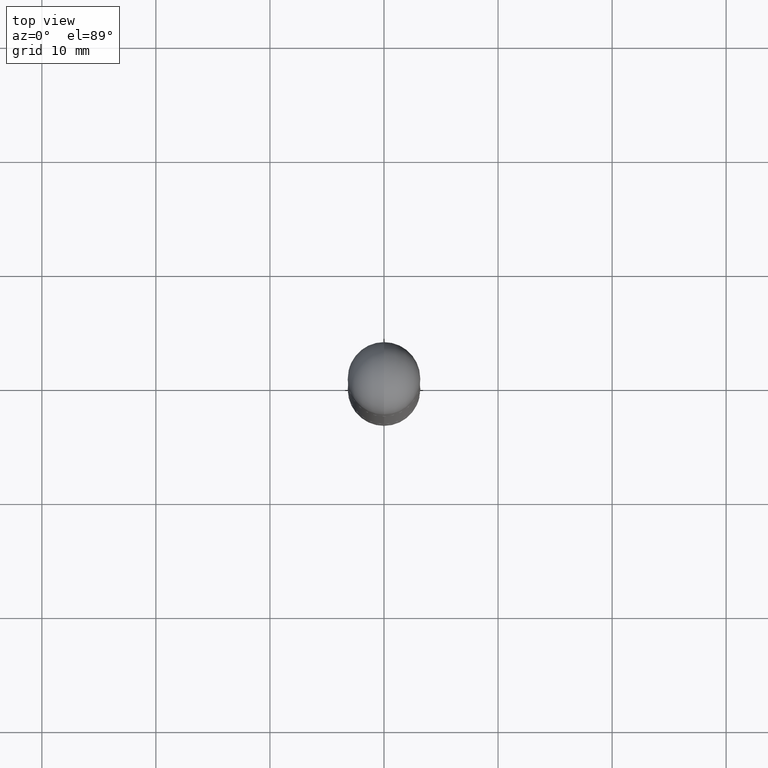
[diagram: clean part render]
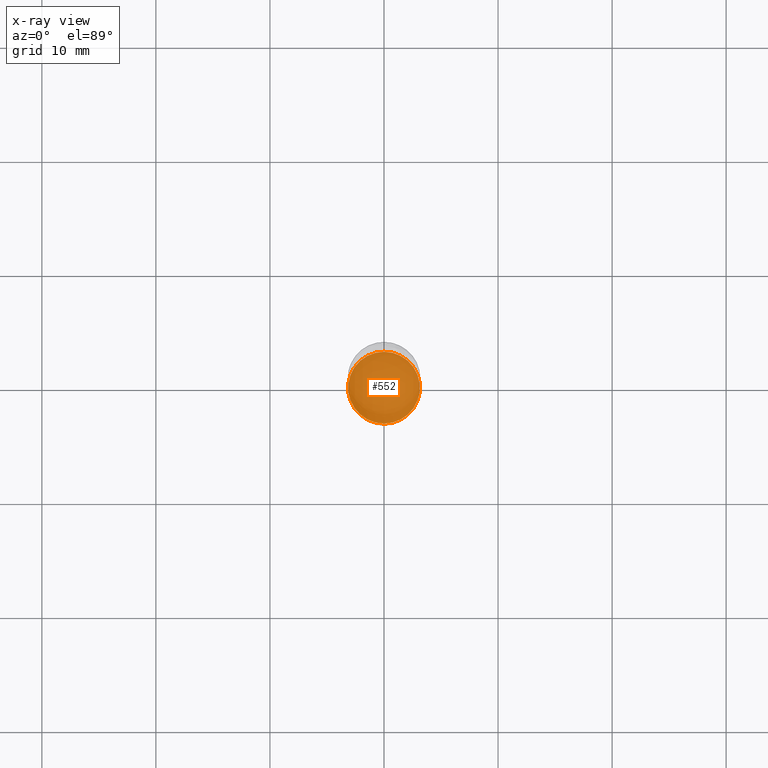
[diagram: x-ray — body ghosted, one internal face saturated and labeled with its STEP entity id]
A machine part, top view, then the same camera in x-ray: the body is ghosted and one INTERNAL B-rep face — a face not visible from any outside direction — is saturated and labeled: STEP entity #552.
In plain terms, the highlighted planar face has unit normal (-0, 0, 1).
Its self-contained STEP definition (entity closure, byte-faithful):
#63 = DIRECTION ( 'NONE',  ( -2.446114484898438574E-29, 3.490556690175946618E-15, 1.000000000000000000 ) ) ;
#157 = CARTESIAN_POINT ( 'NONE',  ( 4.892228969796877709E-29, -6.981113380351891658E-15, -1.999999999999999778 ) ) ;
#167 = EDGE_CURVE ( 'NONE', #344, #527, #604, .T. ) ;
#194 = DIRECTION ( 'NONE',  ( -6.982962677686265922E-15, -1.000000000000000000, 3.490556690175946618E-15 ) ) ;
#219 = ORIENTED_EDGE ( 'NONE', *, *, #271, .F. ) ;
#228 = CIRCLE ( 'NONE', #533, 0.1239999999999999991 ) ;
#259 = PLANE ( 'NONE',  #773 ) ;
#270 = CARTESIAN_POINT ( 'NONE',  ( -8.658873720330480207E-16, -0.1240000000000069796, -1.999999999999999112 ) ) ;
#271 = EDGE_CURVE ( 'NONE', #527, #344, #228, .T. ) ;
#294 = EDGE_LOOP ( 'NONE', ( #789, #219 ) ) ;
#312 = CARTESIAN_POINT ( 'NONE',  ( 8.846257060213744265E-16, 0.1239999999999930186, -2.000000000000000444 ) ) ;
#315 = FACE_OUTER_BOUND ( 'NONE', #294, .T. ) ;
#344 = VERTEX_POINT ( 'NONE', #270 ) ;
#371 = DIRECTION ( 'NONE',  ( -6.982962677686265922E-15, -1.000000000000000000, 4.406206441393973340E-15 ) ) ;
#433 = DIRECTION ( 'NONE',  ( -2.446114484898439135E-29, 3.490556690175946223E-15, 1.000000000000000000 ) ) ;
#452 = DIRECTION ( 'NONE',  ( -6.982962677686265922E-15, -1.000000000000000000, 4.406206441393973340E-15 ) ) ;
#492 = AXIS2_PLACEMENT_3D ( 'NONE', #749, #433, #371 ) ;
#527 = VERTEX_POINT ( 'NONE', #312 ) ;
#533 = AXIS2_PLACEMENT_3D ( 'NONE', #157, #626, #452 ) ;
#552 = ADVANCED_FACE ( 'NONE', ( #315 ), #259, .F. ) ;
#604 = CIRCLE ( 'NONE', #492, 0.1239999999999999991 ) ;
#626 = DIRECTION ( 'NONE',  ( -2.446114484898439135E-29, 3.490556690175946223E-15, 1.000000000000000000 ) ) ;
#688 = CARTESIAN_POINT ( 'NONE',  ( 4.892228969796878269E-29, -6.981113380351892447E-15, -2.000000000000000000 ) ) ;
#749 = CARTESIAN_POINT ( 'NONE',  ( 4.892228969796877709E-29, -6.981113380351891658E-15, -1.999999999999999778 ) ) ;
#773 = AXIS2_PLACEMENT_3D ( 'NONE', #688, #63, #194 ) ;
#789 = ORIENTED_EDGE ( 'NONE', *, *, #167, .F. ) ;